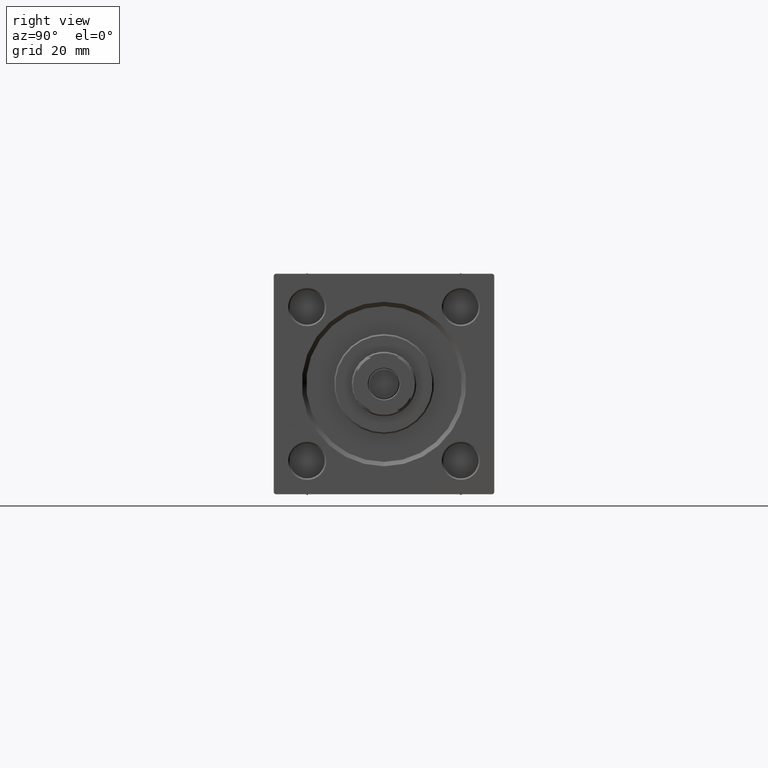
[diagram: clean part render]
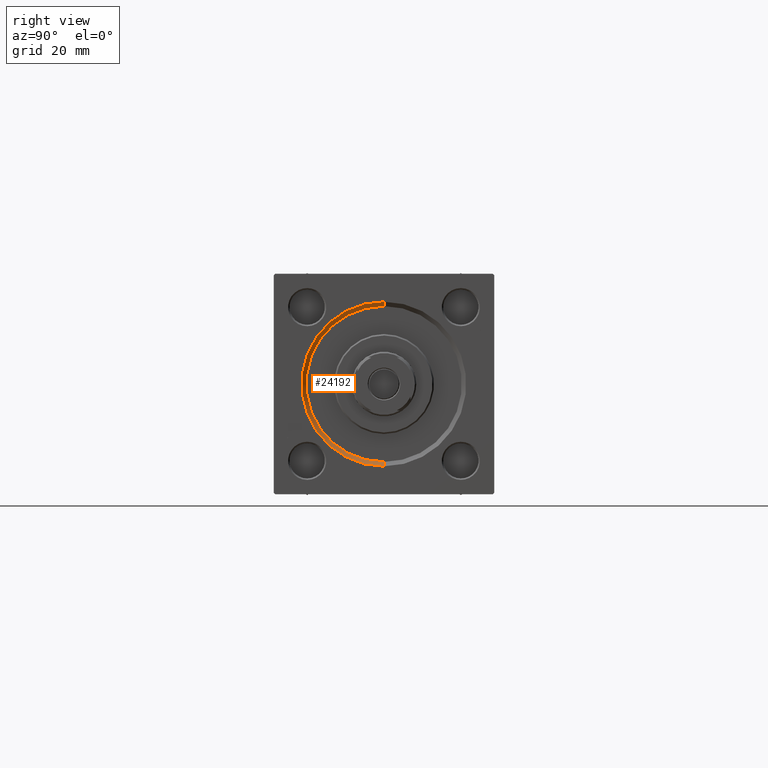
[diagram: same view with one face highlighted and labeled with its STEP entity id]
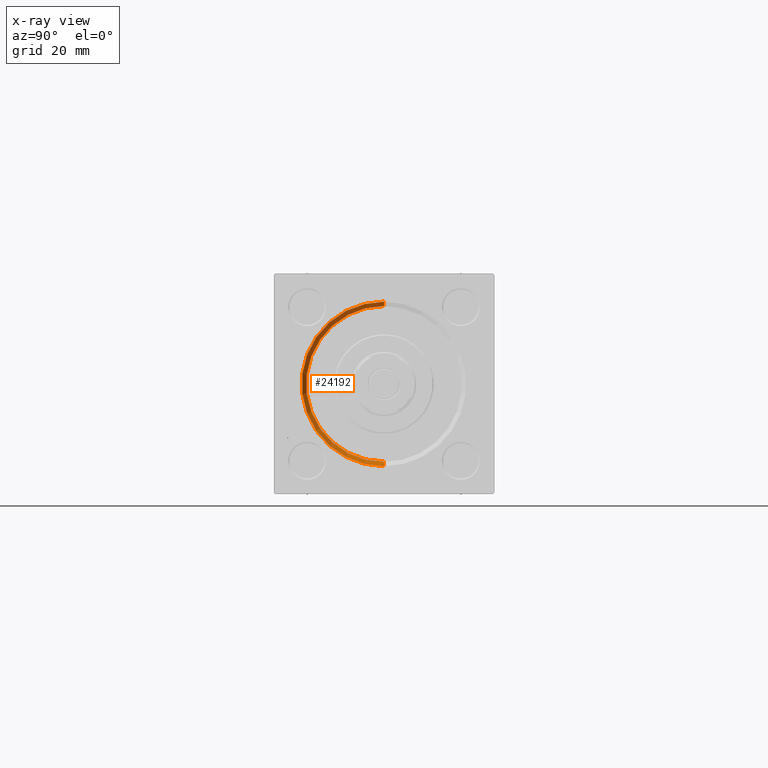
[diagram: x-ray of the same camera — body ghosted, the highlighted face saturated]
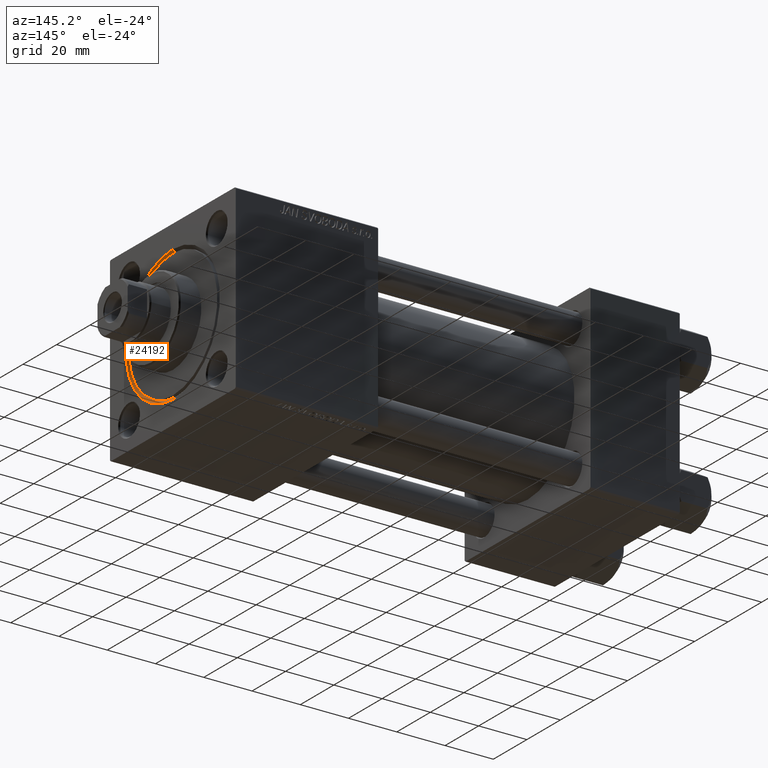
[diagram: same view with one face highlighted and labeled with its STEP entity id]
A machine part, right view. The second image highlights one B-rep face of the part: STEP entity #24192.
The next image is the same camera in x-ray: the body ghosted, the highlighted face saturated — about 0% of this face is hidden behind the body in this view.
A second angle (auxiliary view) of the same face is appended — the face is thin or edge-on in the first view.
In plain terms, the highlighted conical surface has half-angle 45 deg.
Its self-contained STEP definition (entity closure, byte-faithful):
#2102 = VERTEX_POINT ( 'NONE', #38860 ) ;
#2886 = CIRCLE ( 'NONE', #17037, 26.50000000000000355 ) ;
#5397 = EDGE_CURVE ( 'NONE', #34967, #38774, #2886, .T. ) ;
#5720 = CARTESIAN_POINT ( 'NONE',  ( 182.5000000000000284, 0.000000000000000000, 0.000000000000000000 ) ) ;
#5956 = CARTESIAN_POINT ( 'NONE',  ( 182.5000000000000284, 3.245314017740486554E-15, 26.50000000000000355 ) ) ;
#6381 = VECTOR ( 'NONE', #20621, 1000.000000000000000 ) ;
#6454 = LINE ( 'NONE', #5956, #41246 ) ;
#6866 = CARTESIAN_POINT ( 'NONE',  ( 182.5000000000000284, 0.000000000000000000, 0.000000000000000000 ) ) ;
#7719 = DIRECTION ( 'NONE',  ( 0.000000000000000000, 0.000000000000000000, 1.000000000000000000 ) ) ;
#8884 = VERTEX_POINT ( 'NONE', #42672 ) ;
#9178 = CARTESIAN_POINT ( 'NONE',  ( 182.5000000000000284, 0.000000000000000000, -26.50000000000000355 ) ) ;
#9620 = CARTESIAN_POINT ( 'NONE',  ( 182.5000000000000284, 0.000000000000000000, -26.50000000000000355 ) ) ;
#11719 = EDGE_CURVE ( 'NONE', #34967, #2102, #6454, .T. ) ;
#14414 = ORIENTED_EDGE ( 'NONE', *, *, #32751, .F. ) ;
#14993 = CARTESIAN_POINT ( 'NONE',  ( 184.0000000000000000, 0.000000000000000000, 0.000000000000000000 ) ) ;
#17037 = AXIS2_PLACEMENT_3D ( 'NONE', #5720, #17666, #26465 ) ;
#17666 = DIRECTION ( 'NONE',  ( 1.000000000000000000, 0.000000000000000000, 0.000000000000000000 ) ) ;
#18065 = DIRECTION ( 'NONE',  ( 0.000000000000000000, 0.000000000000000000, -1.000000000000000000 ) ) ;
#19019 = ORIENTED_EDGE ( 'NONE', *, *, #44014, .F. ) ;
#20621 = DIRECTION ( 'NONE',  ( 0.7071067811865426878, 0.000000000000000000, -0.7071067811865524577 ) ) ;
#21806 = DIRECTION ( 'NONE',  ( 0.7071067811865426878, 8.659560562354993255E-17, 0.7071067811865524577 ) ) ;
#24192 = ADVANCED_FACE ( 'NONE', ( #30758 ), #43399, .F. ) ;
#26465 = DIRECTION ( 'NONE',  ( 0.000000000000000000, 0.000000000000000000, 1.000000000000000000 ) ) ;
#28686 = ORIENTED_EDGE ( 'NONE', *, *, #11719, .T. ) ;
#30260 = DIRECTION ( 'NONE',  ( 1.000000000000000000, 0.000000000000000000, 0.000000000000000000 ) ) ;
#30758 = FACE_OUTER_BOUND ( 'NONE', #50485, .T. ) ;
#30774 = ORIENTED_EDGE ( 'NONE', *, *, #5397, .F. ) ;
#32305 = LINE ( 'NONE', #9178, #6381 ) ;
#32751 = EDGE_CURVE ( 'NONE', #8884, #2102, #36087, .T. ) ;
#34967 = VERTEX_POINT ( 'NONE', #38106 ) ;
#36087 = CIRCLE ( 'NONE', #45218, 27.99999999999999645 ) ;
#38106 = CARTESIAN_POINT ( 'NONE',  ( 182.5000000000000284, 3.245314017740486554E-15, 26.50000000000000355 ) ) ;
#38774 = VERTEX_POINT ( 'NONE', #9620 ) ;
#38860 = CARTESIAN_POINT ( 'NONE',  ( 184.0000000000000000, 3.429011037612588881E-15, 27.99999999999999645 ) ) ;
#40092 = AXIS2_PLACEMENT_3D ( 'NONE', #6866, #30260, #18065 ) ;
#41246 = VECTOR ( 'NONE', #21806, 1000.000000000000000 ) ;
#42672 = CARTESIAN_POINT ( 'NONE',  ( 184.0000000000000000, 0.000000000000000000, -27.99999999999999645 ) ) ;
#43306 = DIRECTION ( 'NONE',  ( -1.000000000000000000, -0.000000000000000000, 0.000000000000000000 ) ) ;
#43399 = CONICAL_SURFACE ( 'NONE', #40092, 26.50000000000000355, 0.7853981633974552734 ) ;
#44014 = EDGE_CURVE ( 'NONE', #38774, #8884, #32305, .T. ) ;
#45218 = AXIS2_PLACEMENT_3D ( 'NONE', #14993, #43306, #7719 ) ;
#50485 = EDGE_LOOP ( 'NONE', ( #30774, #28686, #14414, #19019 ) ) ;